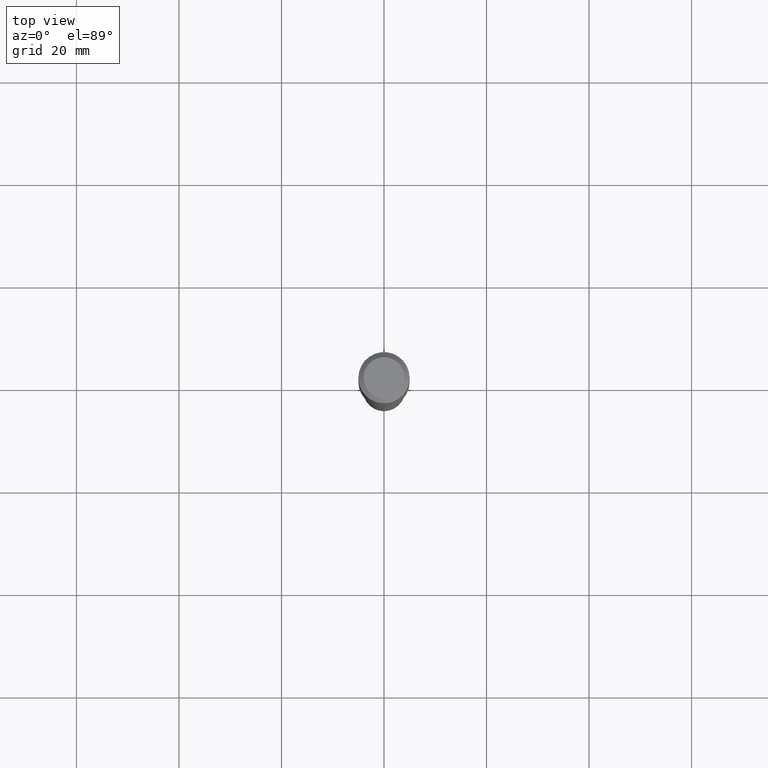
[diagram: clean part render]
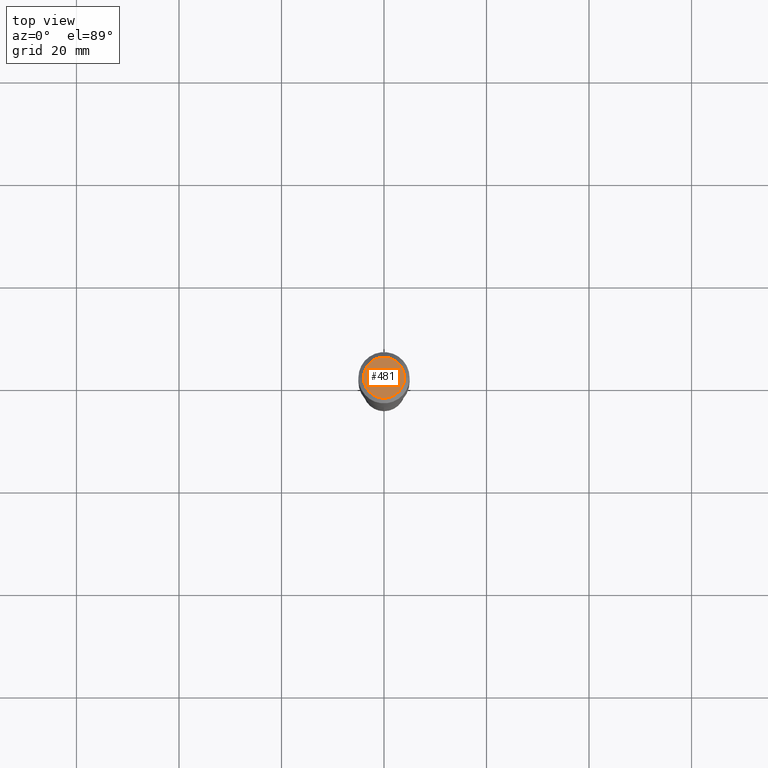
[diagram: same view with one face highlighted and labeled with its STEP entity id]
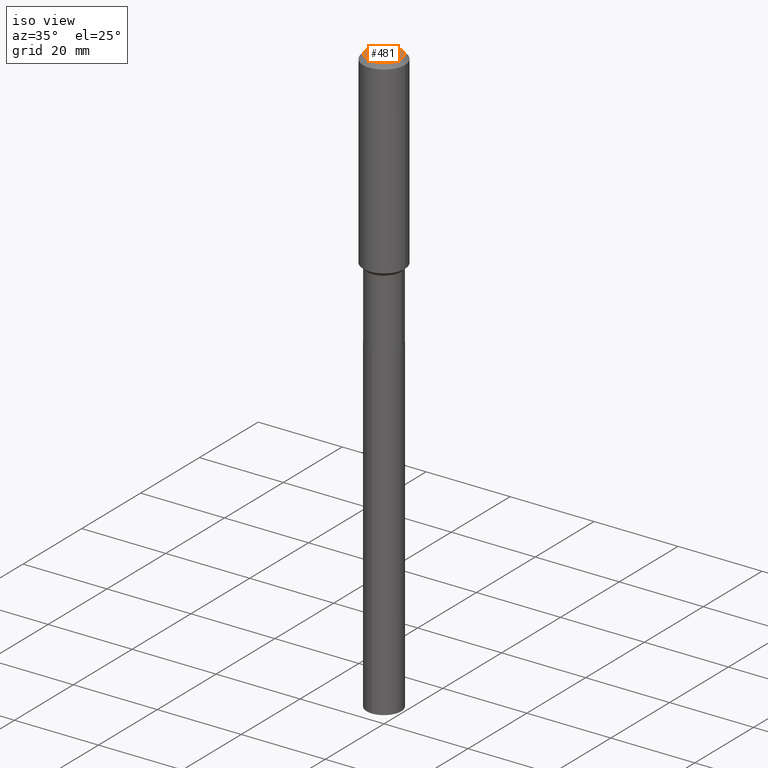
[diagram: same view with one face highlighted and labeled with its STEP entity id]
A machine part, top view. The second image highlights one B-rep face of the part: STEP entity #481.
A second angle (iso view) of the same face is appended — the face is thin or edge-on in the first view.
In plain terms, the highlighted planar face has unit normal (0, -0, -1).
Its self-contained STEP definition (entity closure, byte-faithful):
#2 = AXIS2_PLACEMENT_3D ( 'NONE', #41, #193, #274 ) ;
#41 = CARTESIAN_POINT ( 'NONE',  ( -9.427742298522567634E-47, 1.346031739168368355E-32, 3.855188123715870730E-18 ) ) ;
#44 = AXIS2_PLACEMENT_3D ( 'NONE', #453, #85, #87 ) ;
#55 = PLANE ( 'NONE',  #120 ) ;
#67 = CIRCLE ( 'NONE', #2, 0.1574800000000000089 ) ;
#85 = DIRECTION ( 'NONE',  ( -2.445468806185136597E-29, 3.491481338843145583E-15, 1.000000000000000000 ) ) ;
#87 = DIRECTION ( 'NONE',  ( 1.000000000000000000, -6.982962677686265922E-15, 4.876223630392693006E-29 ) ) ;
#120 = AXIS2_PLACEMENT_3D ( 'NONE', #355, #467, #132 ) ;
#132 = DIRECTION ( 'NONE',  ( -1.000000000000000000, 6.982962677686265922E-15, -4.876176775795935793E-29 ) ) ;
#154 = CARTESIAN_POINT ( 'NONE',  ( 0.1574800000000000089, -1.284169937930321189E-15, 3.855188123724205385E-18 ) ) ;
#193 = DIRECTION ( 'NONE',  ( -2.445468806185136597E-29, 3.491481338843145583E-15, 1.000000000000000000 ) ) ;
#233 = ORIENTED_EDGE ( 'NONE', *, *, #273, .T. ) ;
#245 = ORIENTED_EDGE ( 'NONE', *, *, #285, .T. ) ;
#247 = FACE_OUTER_BOUND ( 'NONE', #376, .T. ) ;
#273 = EDGE_CURVE ( 'NONE', #487, #299, #67, .T. ) ;
#274 = DIRECTION ( 'NONE',  ( 1.000000000000000000, -6.982962677686265922E-15, 4.876223630392693006E-29 ) ) ;
#285 = EDGE_CURVE ( 'NONE', #299, #487, #470, .T. ) ;
#299 = VERTEX_POINT ( 'NONE', #154 ) ;
#355 = CARTESIAN_POINT ( 'NONE',  ( -4.713871149261283817E-47, 6.730158695841841775E-33, 1.927594061857935365E-18 ) ) ;
#376 = EDGE_LOOP ( 'NONE', ( #233, #245 ) ) ;
#393 = CARTESIAN_POINT ( 'NONE',  ( -0.1574800000000000089, 1.168406772637159618E-15, 3.855188123707939751E-18 ) ) ;
#453 = CARTESIAN_POINT ( 'NONE',  ( -9.427742298522567634E-47, 1.346031739168368355E-32, 3.855188123715870730E-18 ) ) ;
#467 = DIRECTION ( 'NONE',  ( 2.438088387897960049E-29, -3.491481338843145188E-15, -1.000000000000000000 ) ) ;
#470 = CIRCLE ( 'NONE', #44, 0.1574800000000000089 ) ;
#481 = ADVANCED_FACE ( 'NONE', ( #247 ), #55, .F. ) ;
#487 = VERTEX_POINT ( 'NONE', #393 ) ;